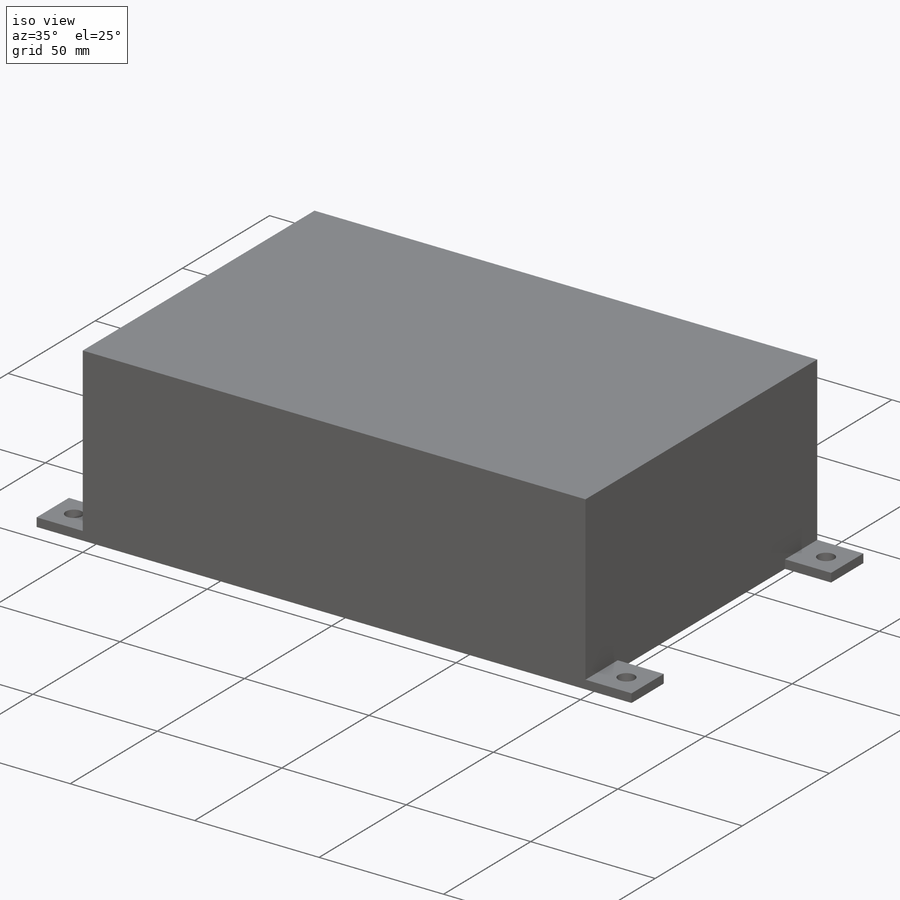
[diagram: iso view]
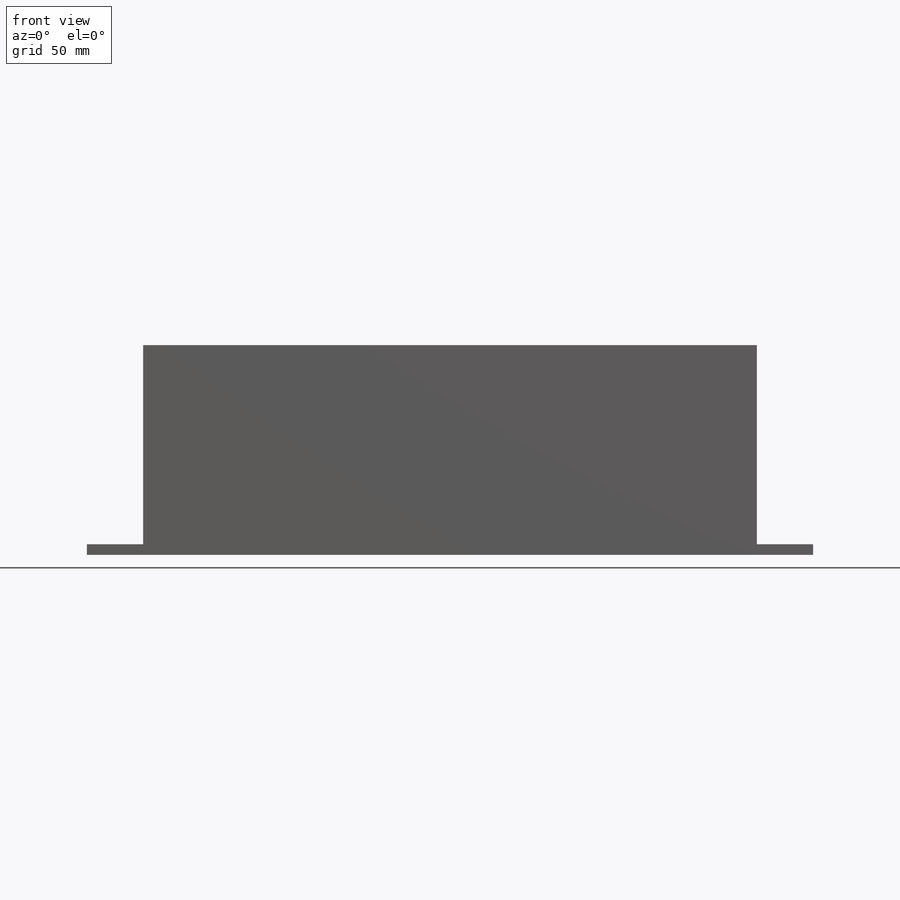
[diagram: front view]
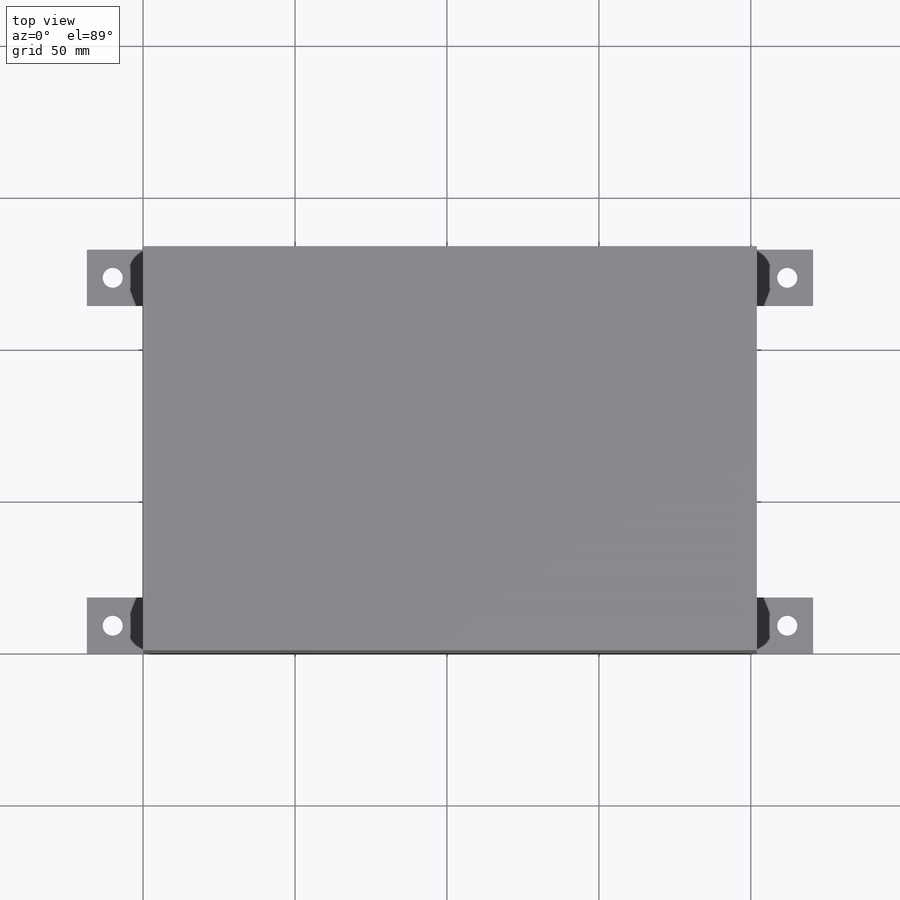
[diagram: top view]
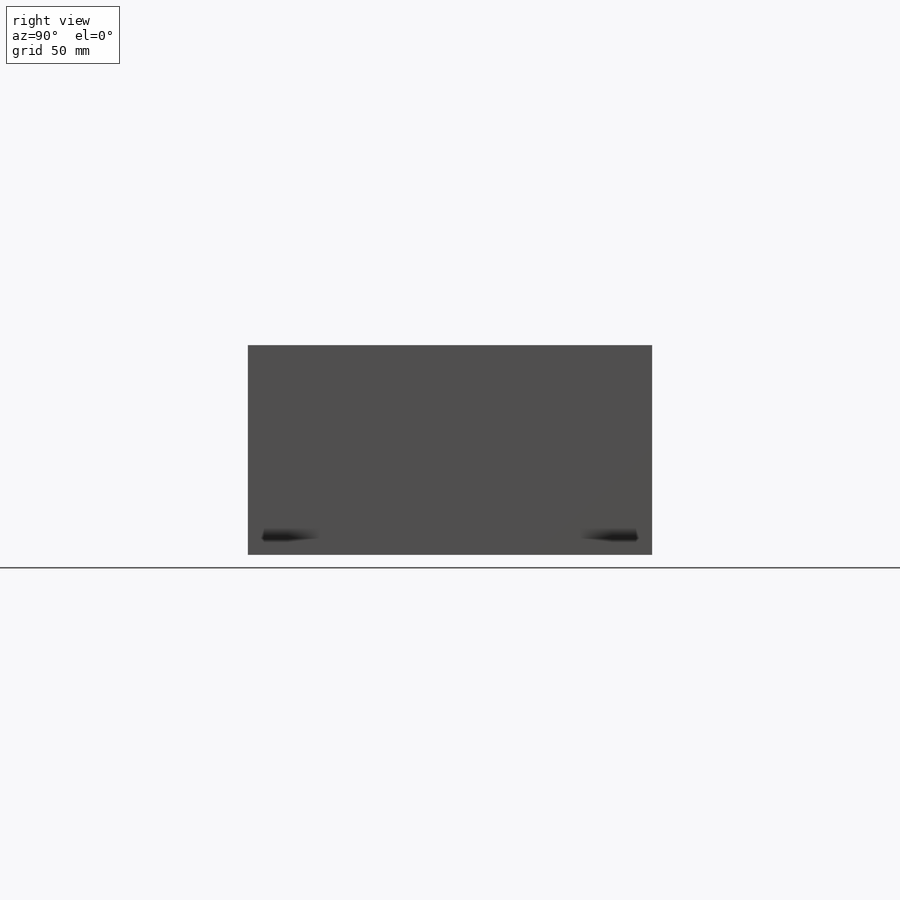
[diagram: right view]
SOLIDWORKS PART (.sldprt)
format: sldprt  version: not decoded by parser v0  size: 166,912 bytes
history: native  units: mm
features: sketch x4, extrude x2, material x1, hole x1 (+11 scaffold rows collapsed)
feature tree (19):
  scaffold x11  (default folders/planes/origin — collapsed)
  material  "Material <not specified>"
  sketch  "Sketch1"  dims[D1=133.0mm D2=202.0mm]
  extrude  "Boss-Extrude1"  Depth=69mm
  sketch  "Sketch2"  dims[D1=239.0mm D2=18.5mm]
  extrude  "Boss-Extrude2"  Depth=3.5mm
  hole  "M6 Clearance Hole1"  Diameter=6.6mm Depth=3.50005mm
  sketch  "Sketch4"  dims[D1=222.0mm D2=111.0mm]
  sketch  "Sketch3"  dims[hole-wizard template sketch: 60 standard entries collapsed; hole parameters kept: c18.Thru Hole Depth=~3.50005mm]
decode coverage: 7 of 7 modeling features carry decoded parameters
note: ~ marks probable driven/reference dimensions
note: suppression state not decoded; provenance and decode notes live in map.json
